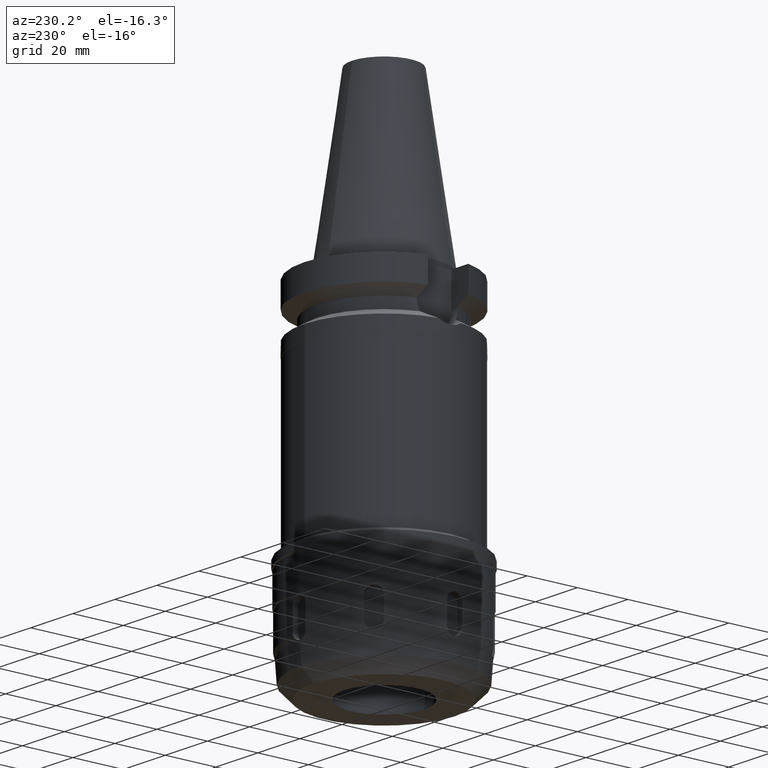
[diagram: clean part render]
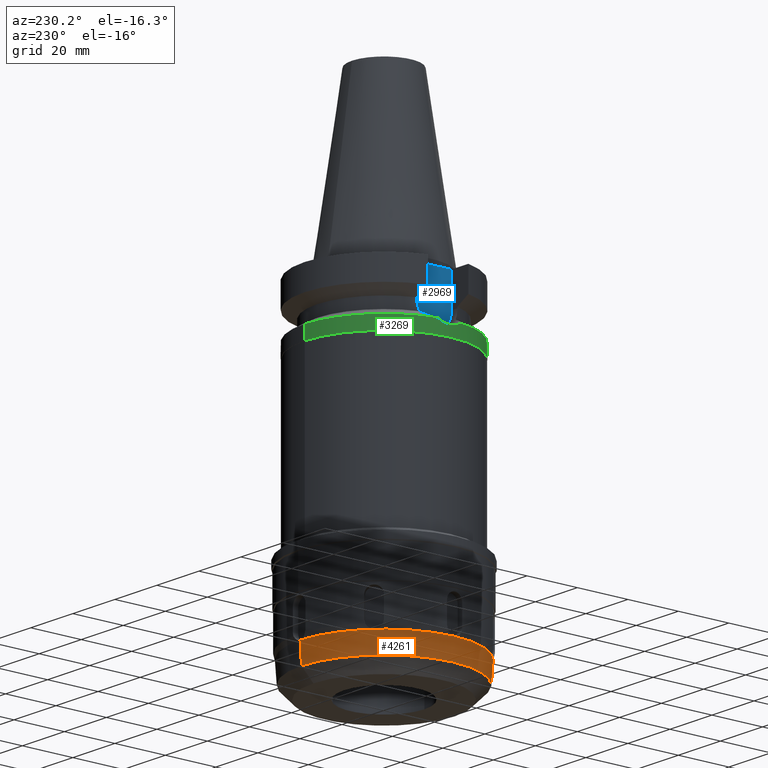
[diagram: same view with three faces highlighted in distinct colors, each labeled with its STEP entity id]
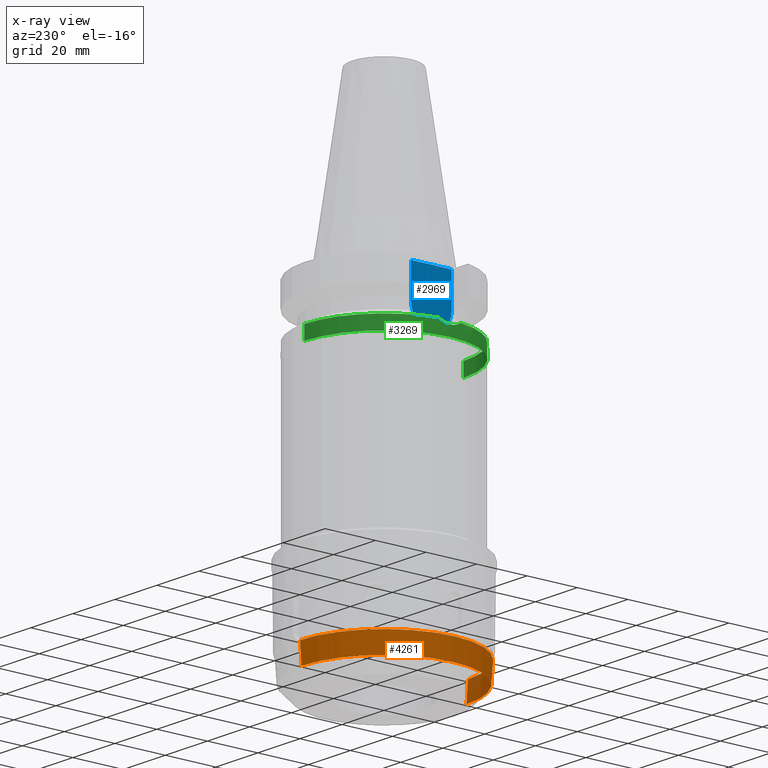
[diagram: x-ray of the same camera — body ghosted, the three highlighted faces saturated]
A machine part, auxiliary view with three faces highlighted in distinct colors.
The next image is the same camera in x-ray (body ghosted, the three faces saturated) — at least one of them is partly hidden behind the body in this view.
Their STEP definitions:

[orange] entity #4261 — the highlighted conical surface has half-angle 4 deg.
#1200=CARTESIAN_POINT('',(0.E0,0.E0,-1.222675440235E2));
#1201=DIRECTION('',(0.E0,0.E0,-1.E0));
#1202=DIRECTION('',(0.E0,-1.E0,0.E0));
#1203=AXIS2_PLACEMENT_3D('',#1200,#1201,#1202);
#2098=DIRECTION('',(0.E0,-6.975647374481E-2,-9.975640502598E-1));
#2099=VECTOR('',#2098,8.065102160010E0);
#2100=CARTESIAN_POINT('',(0.E0,3.324959308707E1,-1.222675440235E2));
#2101=LINE('',#2100,#2099);
#2113=DIRECTION('',(0.E0,6.975647374482E-2,-9.975640502598E-1));
#2114=VECTOR('',#2113,8.065102160010E0);
#2115=CARTESIAN_POINT('',(-6.313504286221E-14,-3.324959308707E1,
-1.222675440235E2));
#2116=LINE('',#2115,#2114);
#2120=CARTESIAN_POINT('',(0.E0,0.E0,-1.30313E2));
#2121=DIRECTION('',(0.E0,0.E0,-1.E0));
#2122=DIRECTION('',(0.E0,-1.E0,0.E0));
#2123=AXIS2_PLACEMENT_3D('',#2120,#2121,#2122);
#2542=CARTESIAN_POINT('',(0.E0,3.2687E1,-1.30313E2));
#2543=VERTEX_POINT('',#2542);
#2544=CARTESIAN_POINT('',(0.E0,-3.2687E1,-1.30313E2));
#2545=VERTEX_POINT('',#2544);
#2546=CARTESIAN_POINT('',(0.E0,3.324959308707E1,-1.222675440235E2));
#2547=VERTEX_POINT('',#2546);
#2548=CARTESIAN_POINT('',(-1.221981849497E-13,-3.324959308708E1,
-1.222675440235E2));
#2549=VERTEX_POINT('',#2548);
#4249=CARTESIAN_POINT('',(0.E0,0.E0,-1.262902720118E2));
#4250=DIRECTION('',(0.E0,0.E0,1.E0));
#4251=DIRECTION('',(0.E0,1.E0,0.E0));
#4252=AXIS2_PLACEMENT_3D('',#4249,#4250,#4251);
#4253=CONICAL_SURFACE('',#4252,3.296829654353E1,4.E0);
#4254=ORIENTED_EDGE('',*,*,#4239,.F.);
#4255=ORIENTED_EDGE('',*,*,#3590,.F.);
#4256=ORIENTED_EDGE('',*,*,#4243,.T.);
#4258=ORIENTED_EDGE('',*,*,#4257,.T.);
#4259=EDGE_LOOP('',(#4254,#4255,#4256,#4258));
#4260=FACE_OUTER_BOUND('',#4259,.F.);
#1204=CIRCLE('',#1203,3.324959308708E1);
#2124=CIRCLE('',#2123,3.2687E1);
#3590=EDGE_CURVE('',#2549,#2547,#1204,.T.);
#4239=EDGE_CURVE('',#2547,#2543,#2101,.T.);
#4243=EDGE_CURVE('',#2549,#2545,#2116,.T.);
#4257=EDGE_CURVE('',#2545,#2543,#2124,.T.);
#4261=ADVANCED_FACE('',(#4260),#4253,.T.);

[blue] entity #2969 — the highlighted planar face has unit normal (-1, 0, 0).
#94=DIRECTION('',(0.E0,1.E0,0.E0));
#95=VECTOR('',#94,1.61E1);
#96=CARTESIAN_POINT('',(-2.25E1,-8.05E0,-2.E0));
#97=LINE('',#96,#95);
#170=DIRECTION('',(0.E0,0.E0,-1.E0));
#171=VECTOR('',#170,1.295E1);
#172=CARTESIAN_POINT('',(-2.25E1,-8.05E0,-2.E0));
#173=LINE('',#172,#171);
#177=CARTESIAN_POINT('',(-2.25E1,1.807578675541E-14,-1.495E1));
#178=DIRECTION('',(1.E0,0.E0,0.E0));
#179=DIRECTION('',(0.E0,-1.E0,1.919789379228E-14));
#180=AXIS2_PLACEMENT_3D('',#177,#178,#179);
#185=CARTESIAN_POINT('',(-2.25E1,1.807578675541E-14,-1.495E1));
#186=DIRECTION('',(1.E0,0.E0,0.E0));
#187=DIRECTION('',(0.E0,0.E0,-1.E0));
#188=AXIS2_PLACEMENT_3D('',#185,#186,#187);
#193=DIRECTION('',(0.E0,0.E0,1.E0));
#194=VECTOR('',#193,1.295E1);
#195=CARTESIAN_POINT('',(-2.25E1,8.05E0,-1.495E1));
#196=LINE('',#195,#194);
#2723=CARTESIAN_POINT('',(-2.25E1,8.05E0,-1.495E1));
#2724=VERTEX_POINT('',#2723);
#2725=CARTESIAN_POINT('',(-2.25E1,1.856870709207E-14,-2.3E1));
#2726=VERTEX_POINT('',#2725);
#2727=CARTESIAN_POINT('',(-2.25E1,-8.05E0,-1.495E1));
#2728=VERTEX_POINT('',#2727);
#2743=CARTESIAN_POINT('',(-2.25E1,-8.05E0,-2.E0));
#2744=VERTEX_POINT('',#2743);
#2749=CARTESIAN_POINT('',(-2.25E1,8.05E0,-2.E0));
#2750=VERTEX_POINT('',#2749);
#2953=CARTESIAN_POINT('',(-2.25E1,2.173748068487E-14,0.E0));
#2954=DIRECTION('',(-1.E0,0.E0,0.E0));
#2955=DIRECTION('',(0.E0,0.E0,-1.E0));
#2956=AXIS2_PLACEMENT_3D('',#2953,#2954,#2955);
#2957=PLANE('',#2956);
#2958=ORIENTED_EDGE('',*,*,#2926,.F.);
#2960=ORIENTED_EDGE('',*,*,#2959,.T.);
#2962=ORIENTED_EDGE('',*,*,#2961,.T.);
#2964=ORIENTED_EDGE('',*,*,#2963,.T.);
#2966=ORIENTED_EDGE('',*,*,#2965,.T.);
#2967=EDGE_LOOP('',(#2958,#2960,#2962,#2964,#2966));
#2968=FACE_OUTER_BOUND('',#2967,.F.);
#181=CIRCLE('',#180,8.05E0);
#189=CIRCLE('',#188,8.05E0);
#2926=EDGE_CURVE('',#2744,#2750,#97,.T.);
#2959=EDGE_CURVE('',#2744,#2728,#173,.T.);
#2961=EDGE_CURVE('',#2728,#2726,#181,.T.);
#2963=EDGE_CURVE('',#2726,#2724,#189,.T.);
#2965=EDGE_CURVE('',#2724,#2750,#196,.T.);
#2969=ADVANCED_FACE('',(#2968),#2957,.T.);

[green] entity #3269 — the highlighted cylindrical surface (partial cylindrical patch) has radius 31.5 mm, axis along (0, 0, -1).
#458=CARTESIAN_POINT('',(-3.117899877609E1,-4.485536235554E0,
-2.163449434733E1));
#503=CARTESIAN_POINT('',(0.E0,0.E0,-2.163449434733E1));
#504=DIRECTION('',(0.E0,0.E0,-1.E0));
#505=DIRECTION('',(0.E0,-1.E0,0.E0));
#506=AXIS2_PLACEMENT_3D('',#503,#504,#505);
#545=DIRECTION('',(0.E0,1.099151708819E-13,-1.E0));
#546=VECTOR('',#545,5.365505652669E0);
#547=CARTESIAN_POINT('',(0.E0,3.15E1,-2.163449434733E1));
#548=LINE('',#547,#546);
#558=CARTESIAN_POINT('',(-3.117899877609E1,4.485536235554E0,-2.163449434733E1));
#563=CARTESIAN_POINT('',(0.E0,0.E0,-2.163449434733E1));
#564=DIRECTION('',(0.E0,0.E0,-1.E0));
#565=DIRECTION('',(-9.898094849553E-1,1.423979757319E-1,0.E0));
#566=AXIS2_PLACEMENT_3D('',#563,#564,#565);
#605=CARTESIAN_POINT('',(-3.117899877609E1,4.485536235554E0,-2.163449434733E1));
#606=CARTESIAN_POINT('',(-3.125758072304E1,3.939312484548E0,-2.200103013905E1));
#607=CARTESIAN_POINT('',(-3.139261492805E1,2.797834037428E0,-2.257699109909E1));
#608=CARTESIAN_POINT('',(-3.150507135619E1,9.439074661221E-1,
-2.302018781411E1));
#609=CARTESIAN_POINT('',(-3.150408832849E1,-9.724472449493E-1,
-2.301641485237E1));
#610=CARTESIAN_POINT('',(-3.139073449818E1,-2.815725758134E0,
-2.256928971779E1));
#611=CARTESIAN_POINT('',(-3.125667710255E1,-3.945593557943E0,
-2.199681531279E1));
#612=CARTESIAN_POINT('',(-3.117899877609E1,-4.485536235554E0,
-2.163449434733E1));
#617=DIRECTION('',(0.E0,-1.105773104655E-13,-1.E0));
#618=VECTOR('',#617,5.365505652669E0);
#619=CARTESIAN_POINT('',(0.E0,-3.15E1,-2.163449434733E1));
#620=LINE('',#619,#618);
#632=CARTESIAN_POINT('',(0.E0,2.148275415064E-14,-2.7E1));
#633=DIRECTION('',(0.E0,0.E0,1.E0));
#634=DIRECTION('',(0.E0,1.E0,0.E0));
#635=AXIS2_PLACEMENT_3D('',#632,#633,#634);
#2692=CARTESIAN_POINT('',(0.E0,-3.15E1,-2.7E1));
#2693=CARTESIAN_POINT('',(0.E0,3.15E1,-2.7E1));
#2694=VERTEX_POINT('',#2692);
#2695=VERTEX_POINT('',#2693);
#2699=CARTESIAN_POINT('',(0.E0,3.15E1,-2.163449434733E1));
#2700=VERTEX_POINT('',#2699);
#2701=CARTESIAN_POINT('',(0.E0,-3.15E1,-2.163449434733E1));
#2702=VERTEX_POINT('',#2701);
#2714=VERTEX_POINT('',#458);
#2719=VERTEX_POINT('',#558);
#3255=CARTESIAN_POINT('',(0.E0,2.148275415064E-14,7.542E1));
#3256=DIRECTION('',(0.E0,0.E0,-1.E0));
#3257=DIRECTION('',(0.E0,-1.E0,0.E0));
#3258=AXIS2_PLACEMENT_3D('',#3255,#3256,#3257);
#3259=CYLINDRICAL_SURFACE('',#3258,3.15E1);
#3260=ORIENTED_EDGE('',*,*,#3170,.T.);
#3261=ORIENTED_EDGE('',*,*,#3195,.F.);
#3262=ORIENTED_EDGE('',*,*,#3234,.T.);
#3264=ORIENTED_EDGE('',*,*,#3263,.F.);
#3265=ORIENTED_EDGE('',*,*,#3230,.F.);
#3266=ORIENTED_EDGE('',*,*,#3246,.F.);
#3267=EDGE_LOOP('',(#3260,#3261,#3262,#3264,#3265,#3266));
#3268=FACE_OUTER_BOUND('',#3267,.F.);
#507=CIRCLE('',#506,3.15E1);
#567=CIRCLE('',#566,3.15E1);
#613=B_SPLINE_CURVE_WITH_KNOTS('',3,(#605,#606,#607,#608,#609,#610,#611,#612),
.UNSPECIFIED.,.F.,.F.,(4,1,1,1,1,4),(0.E0,2.E-1,4.E-1,6.E-1,8.E-1,1.E0),
.UNSPECIFIED.);
#636=CIRCLE('',#635,3.15E1);
#3170=EDGE_CURVE('',#2719,#2714,#613,.T.);
#3195=EDGE_CURVE('',#2702,#2714,#507,.T.);
#3230=EDGE_CURVE('',#2700,#2695,#548,.T.);
#3234=EDGE_CURVE('',#2702,#2694,#620,.T.);
#3246=EDGE_CURVE('',#2719,#2700,#567,.T.);
#3263=EDGE_CURVE('',#2695,#2694,#636,.T.);
#3269=ADVANCED_FACE('',(#3268),#3259,.T.);